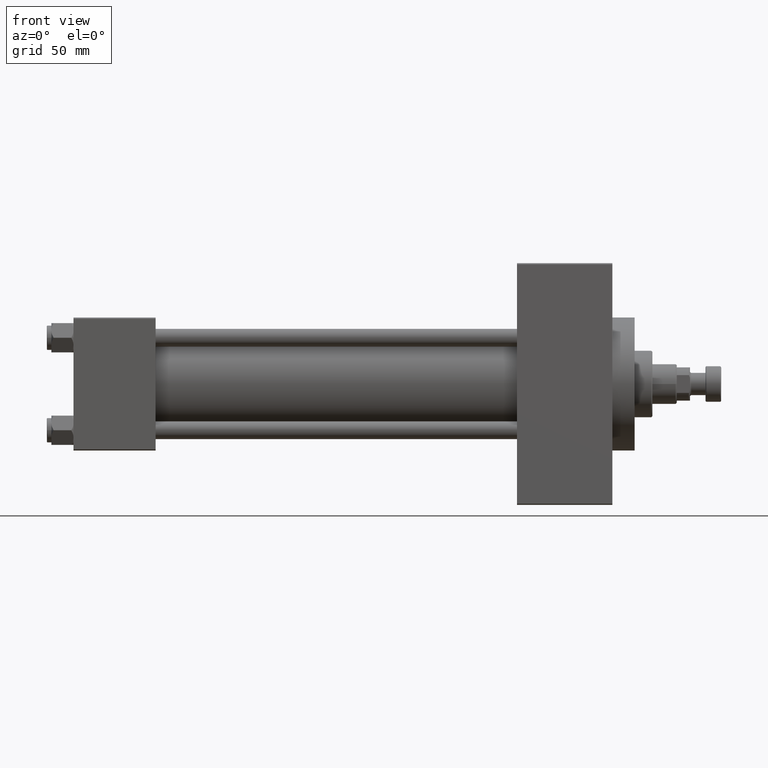
[diagram: clean part render]
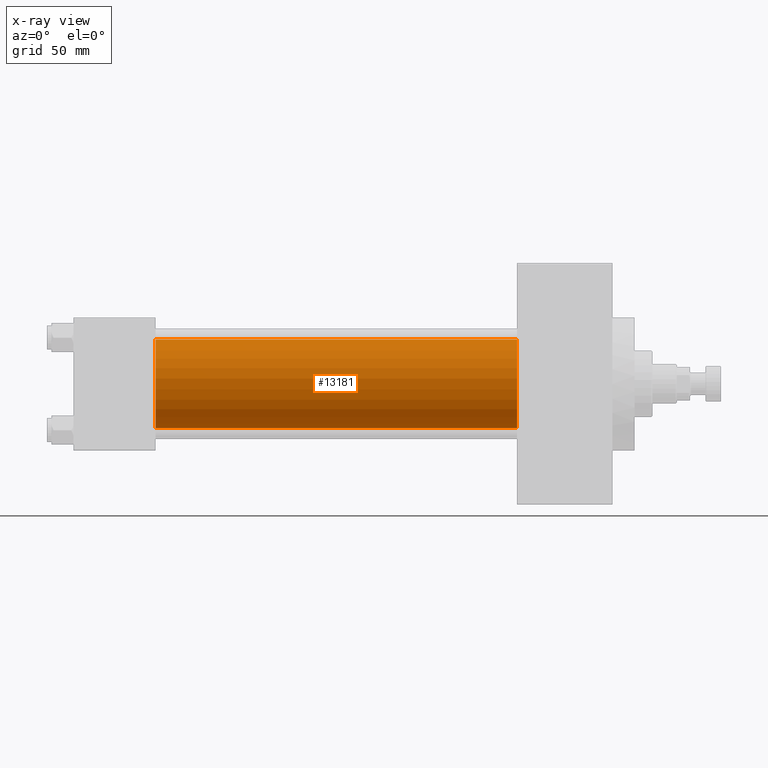
[diagram: x-ray — body ghosted, one internal face saturated and labeled with its STEP entity id]
A machine part, front view, then the same camera in x-ray: the body is ghosted and one INTERNAL B-rep face — a face not visible from any outside direction — is saturated and labeled: STEP entity #13181.
In plain terms, the highlighted cylindrical surface (partial cylindrical patch) has radius 20 mm, axis along (-1, -0, -0).
Its self-contained STEP definition (entity closure, byte-faithful):
#80 = LINE ( 'NONE', #33789, #46015 ) ;
#518 = DIRECTION ( 'NONE',  ( 1.000000000000000000, 0.000000000000000000, 0.000000000000000000 ) ) ;
#520 = CARTESIAN_POINT ( 'NONE',  ( 200.0000000000000000, -2.602085213965210642E-15, 0.000000000000000000 ) ) ;
#1146 = AXIS2_PLACEMENT_3D ( 'NONE', #520, #42009, #8282 ) ;
#3381 = EDGE_CURVE ( 'NONE', #46639, #14105, #23658, .T. ) ;
#8282 = DIRECTION ( 'NONE',  ( 0.000000000000000000, 0.000000000000000000, -1.000000000000000000 ) ) ;
#8693 = CARTESIAN_POINT ( 'NONE',  ( 200.0000000000000000, -2.602085213965210642E-15, 20.00000000000000000 ) ) ;
#9647 = VERTEX_POINT ( 'NONE', #32827 ) ;
#10684 = AXIS2_PLACEMENT_3D ( 'NONE', #36117, #39388, #35376 ) ;
#11330 = DIRECTION ( 'NONE',  ( 0.000000000000000000, 0.000000000000000000, -1.000000000000000000 ) ) ;
#12738 = EDGE_CURVE ( 'NONE', #9647, #14105, #45218, .T. ) ;
#13181 = ADVANCED_FACE ( 'NONE', ( #47431 ), #31862, .F. ) ;
#13912 = ORIENTED_EDGE ( 'NONE', *, *, #12738, .F. ) ;
#14105 = VERTEX_POINT ( 'NONE', #16434 ) ;
#16434 = CARTESIAN_POINT ( 'NONE',  ( 37.00000000000000000, -1.527916156705042519E-16, -20.00000000000000000 ) ) ;
#16998 = EDGE_CURVE ( 'NONE', #34138, #9647, #80, .T. ) ;
#21688 = CARTESIAN_POINT ( 'NONE',  ( 200.0000000000000000, -1.527916156705042519E-16, -20.00000000000000000 ) ) ;
#22126 = EDGE_LOOP ( 'NONE', ( #26765, #47601, #13912, #27447 ) ) ;
#23658 = LINE ( 'NONE', #38986, #45697 ) ;
#26414 = CARTESIAN_POINT ( 'NONE',  ( 37.00000000000000000, -2.602085213965210642E-15, 0.000000000000000000 ) ) ;
#26765 = ORIENTED_EDGE ( 'NONE', *, *, #40935, .T. ) ;
#27447 = ORIENTED_EDGE ( 'NONE', *, *, #16998, .F. ) ;
#30087 = CIRCLE ( 'NONE', #1146, 20.00000000000000000 ) ;
#30800 = AXIS2_PLACEMENT_3D ( 'NONE', #26414, #518, #11330 ) ;
#31862 = CYLINDRICAL_SURFACE ( 'NONE', #10684, 20.00000000000000000 ) ;
#32827 = CARTESIAN_POINT ( 'NONE',  ( 37.00000000000000000, -2.602085213965210642E-15, 20.00000000000000000 ) ) ;
#33191 = DIRECTION ( 'NONE',  ( -1.000000000000000000, -0.000000000000000000, -0.000000000000000000 ) ) ;
#33789 = CARTESIAN_POINT ( 'NONE',  ( 200.0000000000000000, -2.602085213965210642E-15, 20.00000000000000000 ) ) ;
#34138 = VERTEX_POINT ( 'NONE', #8693 ) ;
#35376 = DIRECTION ( 'NONE',  ( 0.000000000000000000, 0.000000000000000000, 1.000000000000000000 ) ) ;
#36117 = CARTESIAN_POINT ( 'NONE',  ( 200.0000000000000000, -2.602085213965210642E-15, 0.000000000000000000 ) ) ;
#38986 = CARTESIAN_POINT ( 'NONE',  ( 200.0000000000000000, -1.527916156705042519E-16, -20.00000000000000000 ) ) ;
#39388 = DIRECTION ( 'NONE',  ( -1.000000000000000000, -0.000000000000000000, -0.000000000000000000 ) ) ;
#40935 = EDGE_CURVE ( 'NONE', #34138, #46639, #30087, .T. ) ;
#42009 = DIRECTION ( 'NONE',  ( 1.000000000000000000, 0.000000000000000000, 0.000000000000000000 ) ) ;
#45218 = CIRCLE ( 'NONE', #30800, 20.00000000000000000 ) ;
#45697 = VECTOR ( 'NONE', #33191, 1000.000000000000000 ) ;
#46015 = VECTOR ( 'NONE', #49122, 1000.000000000000000 ) ;
#46639 = VERTEX_POINT ( 'NONE', #21688 ) ;
#47431 = FACE_OUTER_BOUND ( 'NONE', #22126, .T. ) ;
#47601 = ORIENTED_EDGE ( 'NONE', *, *, #3381, .T. ) ;
#49122 = DIRECTION ( 'NONE',  ( -1.000000000000000000, -0.000000000000000000, -0.000000000000000000 ) ) ;